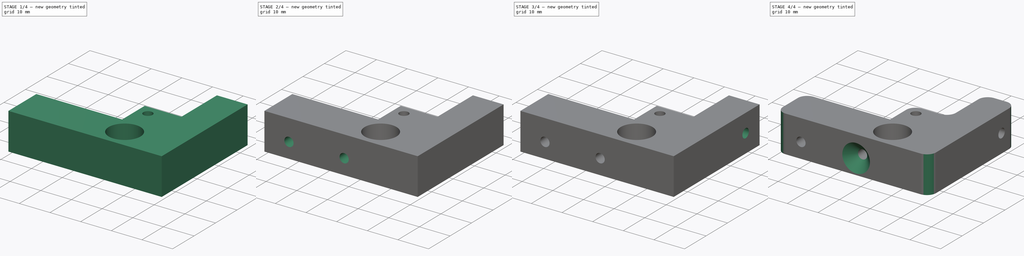
[diagram: build sequence overview — one tinted view per stage of 4, left to right]
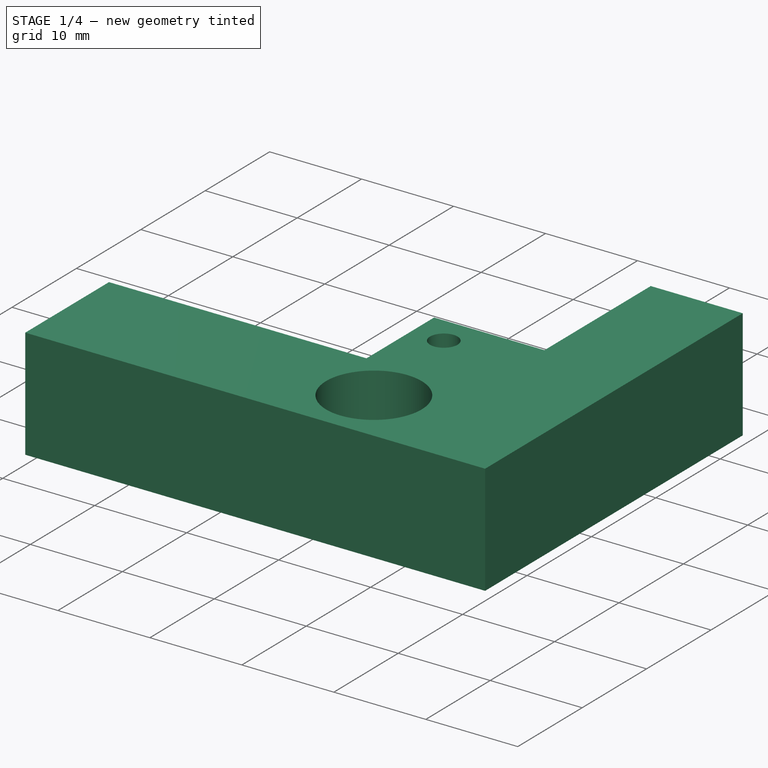
[diagram: stage 1 of 4 — iso view after this stage's code; geometry added in this stage tinted green]
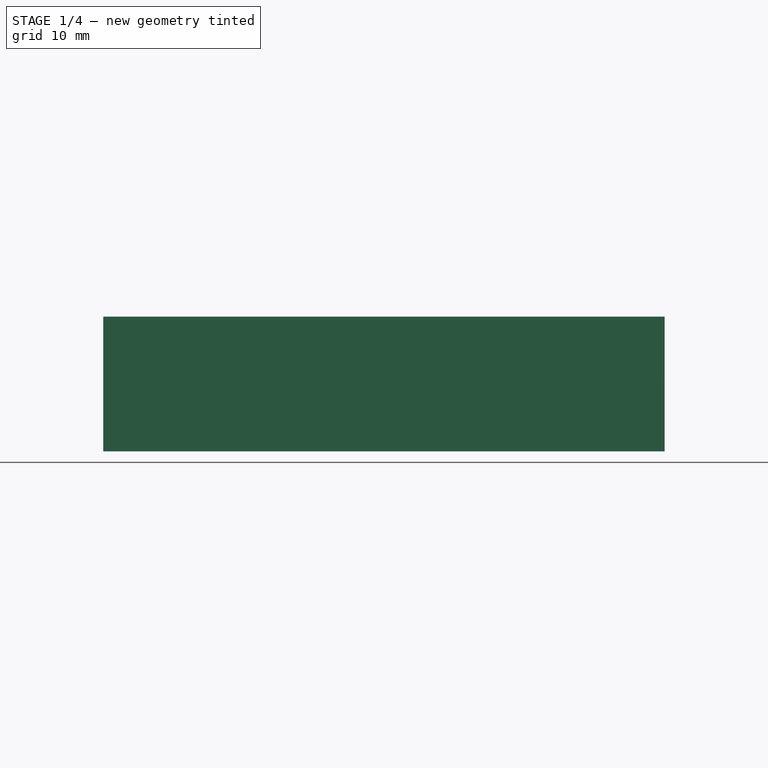
[diagram: stage 1 of 4 — front view after this stage's code; geometry added in this stage tinted green]
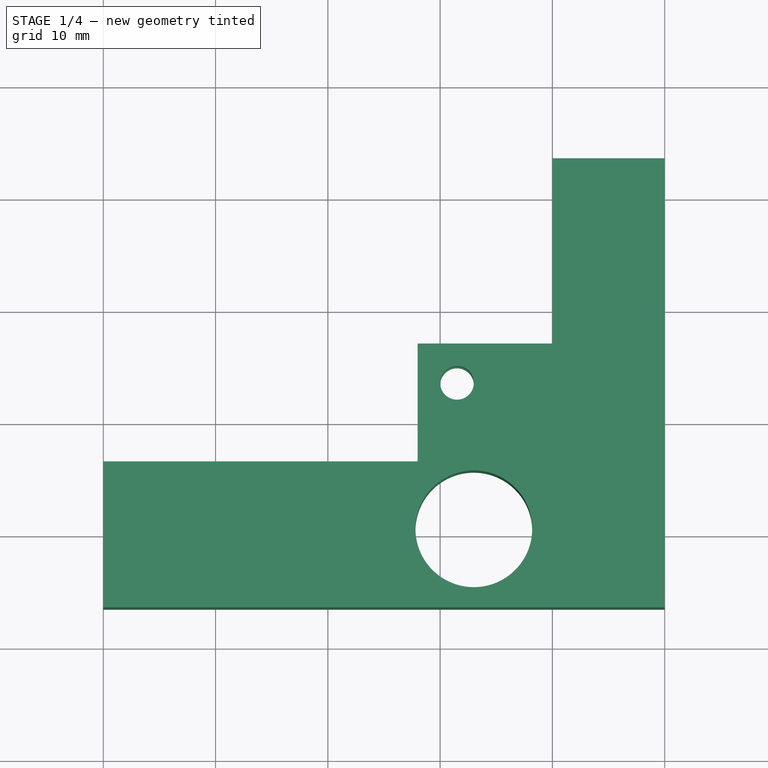
[diagram: stage 1 of 4 — top view after this stage's code; geometry added in this stage tinted green]
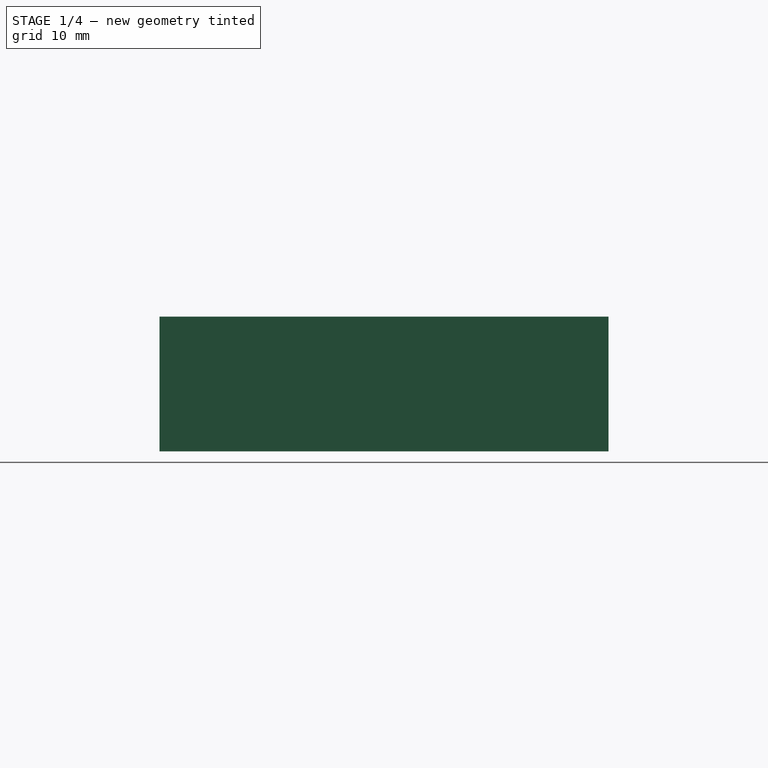
[diagram: stage 1 of 4 — right view after this stage's code; geometry added in this stage tinted green]
FCSTD DOCUMENT  (FreeCAD 0.18R14014 (Git))
Label: DriveIdler_623zz
License: All rights reserved
LicenseURL: http://en.wikipedia.org/wiki/All_rights_reserved
objects: Sketcher::SketchObject×8, PartDesign::Pocket×7, PartDesign::Fillet×2, PartDesign::Pad×1, PartDesign::Plane×1, PartDesign::Chamfer×1, PartDesign::Body×1, App::Part×1
note: 29 computed .brp shape members not serialized (recipe doc carries the construction recipe); baked Part::Feature solids carry a one-line shape summary decoded from their .brp

FEATURE [Sketcher::SketchObject] Sketch  label="DI_BaseSketch"
  MapMode = 5
  Support = -> [XY_Plane001]
  sketch-geometry (20):
    g0: LineSegment [constr] StartX=20 StartY=6.5 StartZ=0 EndX=20 EndY=0 EndZ=0
    g1: LineSegment [constr] StartX=20 StartY=0 StartZ=0 EndX=20 EndY=-6.5 EndZ=0
    g2: LineSegment StartX=20 StartY=-6.5 StartZ=0 EndX=0 EndY=-6.5 EndZ=0
    g3: LineSegment StartX=0 StartY=-6.5 StartZ=0 EndX=-20 EndY=-6.5 EndZ=0
    g4: LineSegment StartX=-20 StartY=6.5 StartZ=0 EndX=0 EndY=6.5 EndZ=0
    g5: Circle CenterX=13 CenterY=0.5 CenterZ=0 NormalX=0 NormalY=0 NormalZ=1 AngleXU=0 Radius=5.2
    g6: LineSegment StartX=0 StartY=6.5 StartZ=0 EndX=8 EndY=6.5 EndZ=0
    g7: LineSegment StartX=8 StartY=6.5 StartZ=0 EndX=8 EndY=17 EndZ=0
    g8: LineSegment StartX=8 StartY=17 StartZ=0 EndX=11.5 EndY=17 EndZ=0
    g9: LineSegment [constr] StartX=8 StartY=6.5 StartZ=0 EndX=20 EndY=6.5 EndZ=0
    g10: Circle CenterX=11.5 CenterY=13.5 CenterZ=0 NormalX=0 NormalY=0 NormalZ=1 AngleXU=0 Radius=1.5
    g11: LineSegment [constr] StartX=11.5 StartY=13.5 StartZ=0 EndX=11.5 EndY=17 EndZ=0
    g12: LineSegment StartX=-20 StartY=6.5 StartZ=0 EndX=-20 EndY=-6.5 EndZ=0
    g13: LineSegment [constr] StartX=13 StartY=0.5 StartZ=0 EndX=13 EndY=-6.5 EndZ=0
    g14: LineSegment [constr] StartX=13 StartY=-6.5 StartZ=0 EndX=20 EndY=-6.5 EndZ=0
    g15: LineSegment StartX=20 StartY=-6.5 StartZ=0 EndX=30 EndY=-6.5 EndZ=0
    g16: LineSegment StartX=30 StartY=-6.5 StartZ=0 EndX=30 EndY=33.5 EndZ=0
    g17: LineSegment StartX=30 StartY=33.5 StartZ=0 EndX=20 EndY=33.5 EndZ=0
    g18: LineSegment StartX=20 StartY=33.5 StartZ=0 EndX=20 EndY=17 EndZ=0
    g19: LineSegment StartX=11.5 StartY=17 StartZ=0 EndX=20 EndY=17 EndZ=0
  constraints (57):
    c: PointOnObject(g4,g-2)
    c: PointOnObject(g0,g-1)
    c: Vertical(g0)
    c: Coincident(g1,g0)
    c: Vertical(g1)
    c: Coincident(g2,g1)
    c: PointOnObject(g2,g-2)
    c: Horizontal(g2)
    c: Coincident(g3,g2)
    c: Horizontal(g3)
    c: Horizontal(g4)
    c: Distance(g0,g1) = 13
    c: Distance(g0,g4) = 40
    c: Radius(g5) = 5.2
    c: Coincident(g6,g4)
    c: Horizontal(g6)
    c: Coincident(g7,g6)
    c: Vertical(g7)
    c: Coincident(g8,g7)
    c: Horizontal(g8)
    c: Coincident(g9,g6)
    c: Coincident(g9,g0)
    c: Horizontal(g9)
    c: Radius(g10) = 1.5
    c: Distance(g8) = 3.5
    c: DistanceX(g-2,g10) = 11.5
    c: Coincident(g11,g10)
    c: Coincident(g11,g8)
    c: Vertical(g11)
    c: Equal(g8,g11)
    c: Distance(g10,g2) = 20
    c: Coincident(g12,g4)
    c: Equal(g2,g3)
    c: Equal(g3,g4)
    c: Coincident(g12,g3)
    c: Equal(g1,g0)
    c: Coincident(g13,g5)
    c: PointOnObject(g13,g2)
    c: Vertical(g13)
    c: Coincident(g14,g13)
    c: Coincident(g14,g1)
    c: Equal(g14,g13)
    c: Distance(g14) = 7
    c: Coincident(g15,g1)
    c: Horizontal(g15)
    c: Coincident(g16,g15)
    c: Vertical(g16)
    c: Coincident(g17,g16)
    c: Horizontal(g17)
    c: Coincident(g18,g17)
    c: Vertical(g18)
    c: Coincident(g19,g8)
    c: Coincident(g19,g18)
    c: Horizontal(g19)
    c: Distance(g17) = 10
    c: Equal(g17,g15)
    c: Distance(g16) = 40
FEATURE [PartDesign::Pad] Pad  label="DI_BasePad"
  Length = 12
  Length2 = 100
  Midplane = true
  Profile = -> Sketch
  Type = 0
FEATURE [Sketcher::SketchObject] Sketch001  label="DI_BearingCut1Sketch"
  ExternalGeometry = -> [Sketch]
  MapMode = 5
  Support = -> [XY_Plane001]
  sketch-geometry (3):
    g0: Circle CenterX=11.5 CenterY=13.5 CenterZ=0 NormalX=0 NormalY=0 NormalZ=1 AngleXU=0 Radius=3.3
    g1: LineSegment [constr] StartX=13 StartY=13.5 StartZ=0 EndX=14.8 EndY=13.5 EndZ=0
    g2: Circle CenterX=11.5 CenterY=13.5 CenterZ=0 NormalX=0 NormalY=0 NormalZ=1 AngleXU=0 Radius=6
  constraints (8):
    c: PointOnObject(g1,g0)
    c: Horizontal(g1)
    c: Distance(g1) = 1.8
    c: Coincident(g2,g0)
    c: Radius(g2) = 6
    c: PointOnObject(g1,g-3)
    c: Perpendicular(g-3,g1)
    c: Coincident(g0,g-3)
FEATURE [PartDesign::Pocket] Pocket  label="DI_BearingCut1Pocket"
  BaseFeature = -> Pad
  Length = 4
  Length2 = 2
  Profile = -> Sketch001
  Type = 4
FEATURE [Sketcher::SketchObject] Sketch002  label="DI_BearingCut2Sketch"
  ExternalGeometry = -> [Sketch001,Sketch]
  MapMode = 5
  Support = -> [XY_Plane001]
  sketch-geometry (2):
    g0: Circle CenterX=11.5 CenterY=13.5 CenterZ=0 NormalX=0 NormalY=0 NormalZ=1 AngleXU=0 Radius=1.5
    g1: Circle CenterX=11.5 CenterY=13.5 CenterZ=0 NormalX=0 NormalY=0 NormalZ=1 AngleXU=0 Radius=3.3
  constraints (4):
    c: Coincident(g1,g0)
    c: Coincident(g0,g-4)
    c: Equal(g0,g-4)
    c: Equal(g1,g-3)
FEATURE [PartDesign::Pocket] Pocket001  label="DI_BearingCut2Pocket"
  BaseFeature = -> Pocket
  Length = 3
  Length2 = 1
  Midplane = true
  Profile = -> Sketch002
  Type = 4
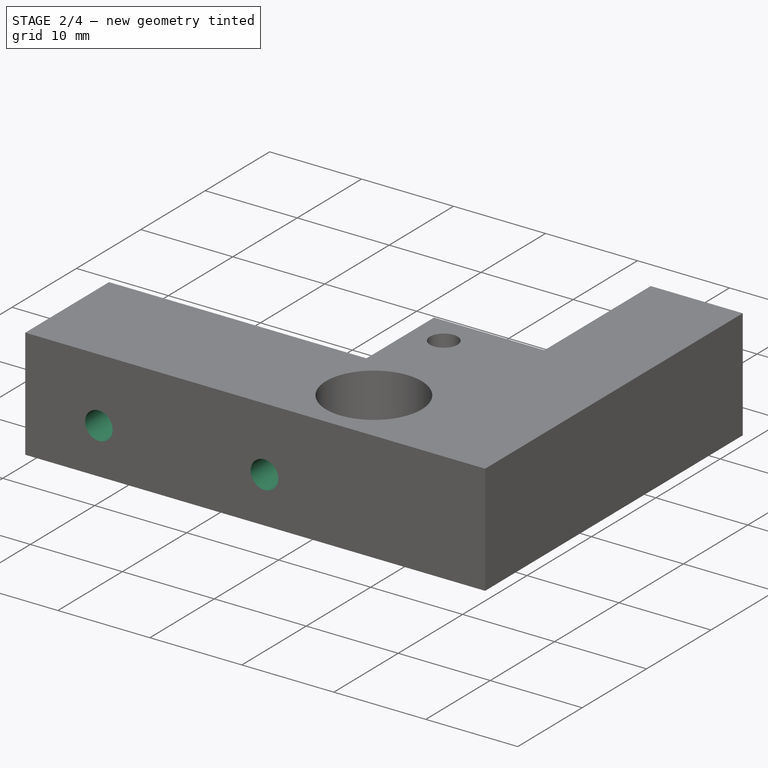
[diagram: stage 2 of 4 — iso view after this stage's code; geometry added in this stage tinted green]
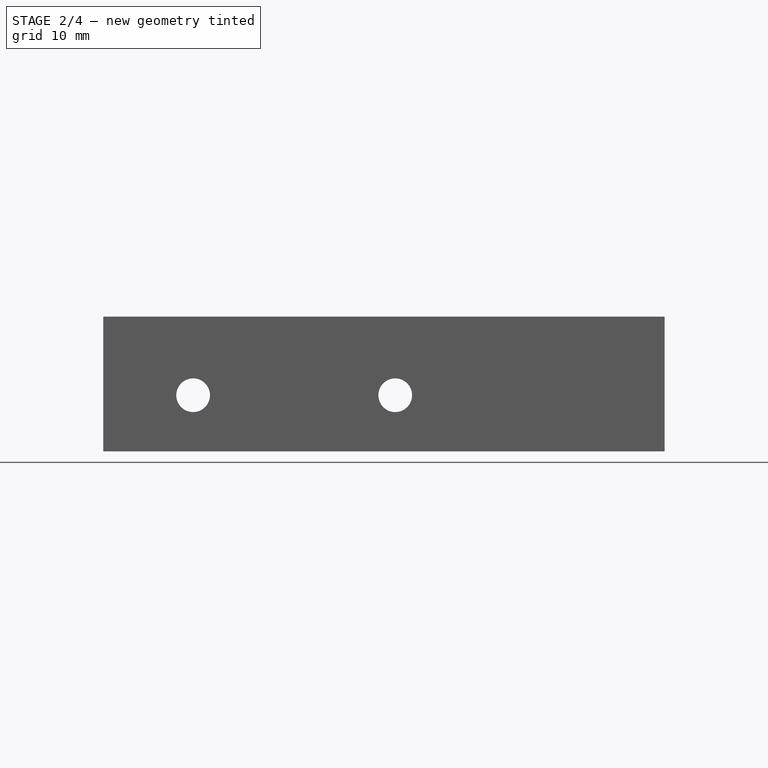
[diagram: stage 2 of 4 — front view after this stage's code; geometry added in this stage tinted green]
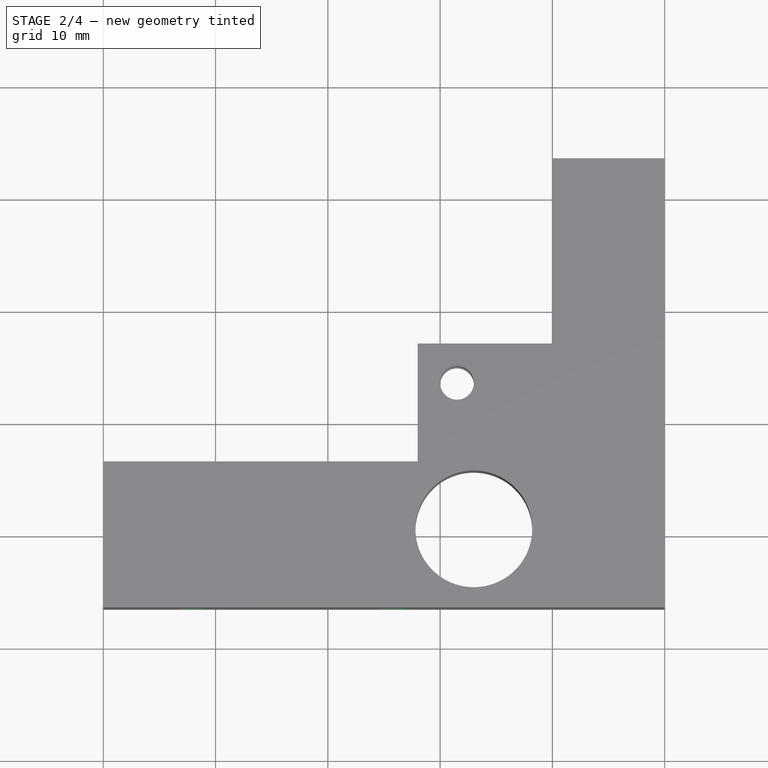
[diagram: stage 2 of 4 — top view after this stage's code; geometry added in this stage tinted green]
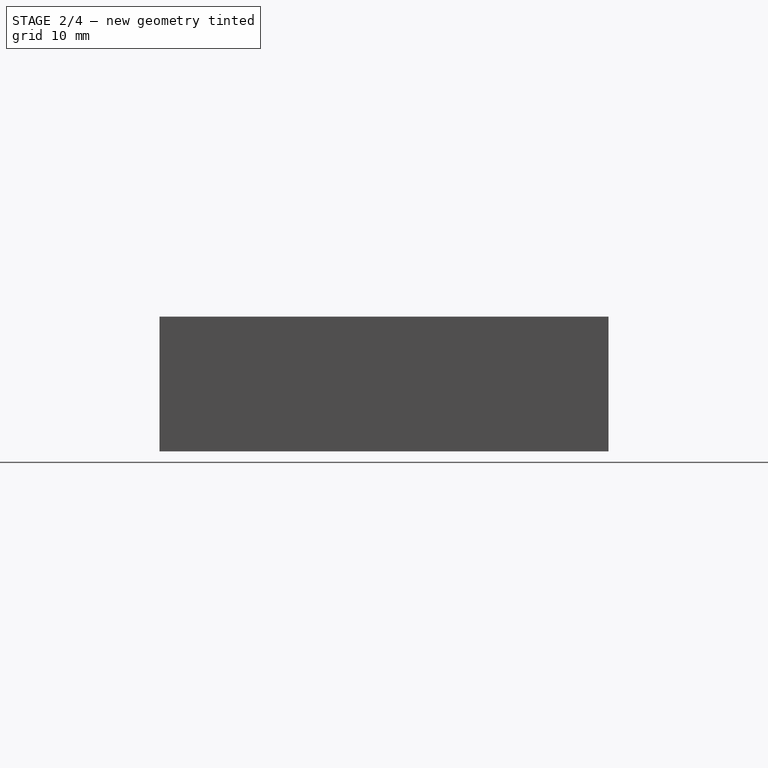
[diagram: stage 2 of 4 — right view after this stage's code; geometry added in this stage tinted green]
FEATURE [PartDesign::Plane] DatumPlane  label="DI_FrontPlane"
  AttachmentOffset = pos=(0,0,-6.5) rot=(0,0,1;0rad)
  MapMode = 5
  Placement = pos=(0,6.5,1e-12) rot=(1,0,0;1.5708rad)
  Support = -> [XZ_Plane001]
FEATURE [Sketcher::SketchObject] Sketch003  label="DI_SpringCutSketch"
  ExternalGeometry = -> [Pocket001]
  MapMode = 5
  Placement = pos=(0,6.5,1e-12) rot=(1,0,0;1.5708rad)
  Support = -> [DatumPlane]
  sketch-geometry (4):
    g0: LineSegment [constr] StartX=-20 StartY=6 StartZ=0 EndX=-12 EndY=6 EndZ=0
    g1: LineSegment [constr] StartX=-12 StartY=6 StartZ=0 EndX=-12 EndY=-1 EndZ=0
    g2: LineSegment [constr] StartX=-12 StartY=-1 StartZ=0 EndX=-12 EndY=-6 EndZ=0
    g3: Circle CenterX=-12 CenterY=-1 CenterZ=0 NormalX=0 NormalY=0 NormalZ=1 AngleXU=0 Radius=4.75
  constraints (11):
    c: Coincident(g1,g0)
    c: Vertical(g1)
    c: Coincident(g2,g1)
    c: Vertical(g2)
    c: Distance(g0) = 8
    c: Distance(g2) = 5
    c: Coincident(g3,g1)
    c: Radius(g3) = 4.75
    c: Coincident(g0,g-4)
    c: PointOnObject(g0,g-4)
    c: PointOnObject(g2,g-3)
FEATURE [PartDesign::Pocket] Pocket002  label="DI_SpringCutPocket"
  BaseFeature = -> Pocket001
  Length = 1.5
  Length2 = 100
  Profile = -> Sketch003
  Reversed = true
  Type = 0
FEATURE [Sketcher::SketchObject] Sketch005  label="DI_SpringScrewSketch"
  ExternalGeometry = -> [Sketch003]
  MapMode = 5
  Placement = pos=(0,6.5,1e-12) rot=(1,0,0;1.5708rad)
  Support = -> [DatumPlane]
  sketch-geometry (1):
    g0: Circle CenterX=-12 CenterY=-1 CenterZ=0 NormalX=0 NormalY=0 NormalZ=1 AngleXU=0 Radius=1.5
  constraints (2):
    c: Coincident(g0,g-3)
    c: Radius(g0) = 1.5
FEATURE [PartDesign::Pocket] Pocket004  label="DI_SpringScrewPocket"
  BaseFeature = -> Pocket002
  Length = 5
  Length2 = 100
  Profile = -> Sketch005
  Reversed = true
  Type = 1
FEATURE [Sketcher::SketchObject] Sketch004  label="DI_FilamenHoleSketch"
  ExternalGeometry = -> [Pocket004]
  MapMode = 5
  Placement = pos=(0,0,0) rot=(1,0,0;1.5708rad)
  Support = -> [XZ_Plane001]
  sketch-geometry (1):
    g0: Circle CenterX=6 CenterY=-1 CenterZ=0 NormalX=0 NormalY=0 NormalZ=1 AngleXU=0 Radius=1.5
  constraints (3):
    c: Distance(g0,g-3) = 5
    c: Distance(g0,g-2) = 6
    c: Radius(g0) = 1.5
FEATURE [PartDesign::Pocket] Pocket003  label="DI_FilamenHolePocket"
  BaseFeature = -> Pocket004
  Length = 5
  Length2 = 100
  Midplane = true
  Profile = -> Sketch004
  Type = 1
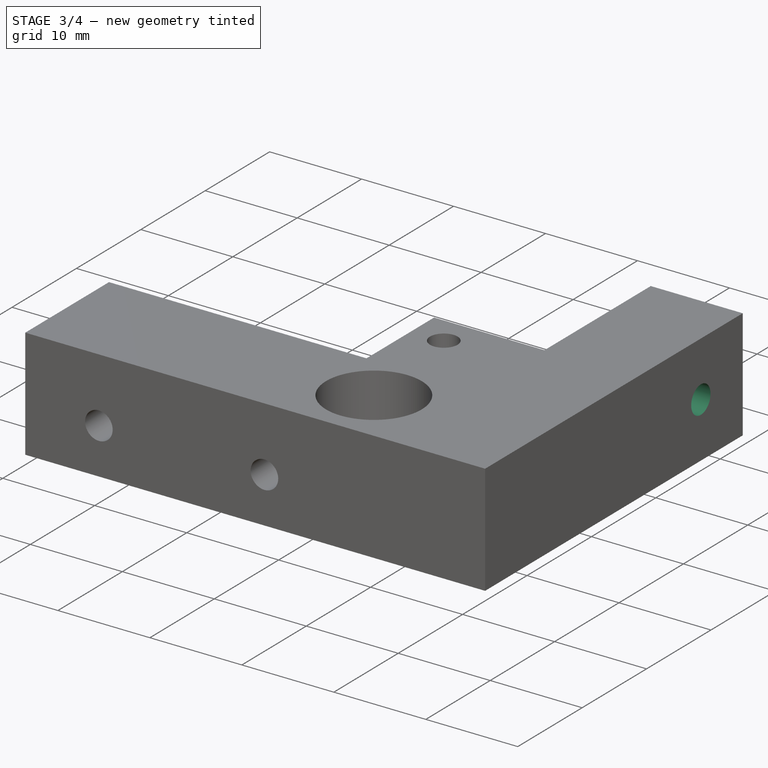
[diagram: stage 3 of 4 — iso view after this stage's code; geometry added in this stage tinted green]
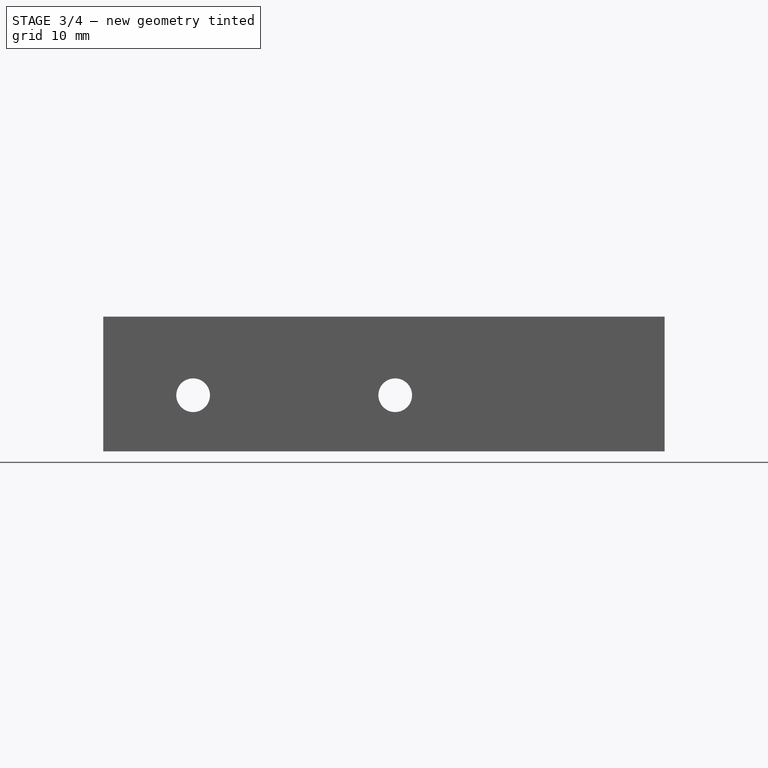
[diagram: stage 3 of 4 — front view after this stage's code; geometry added in this stage tinted green]
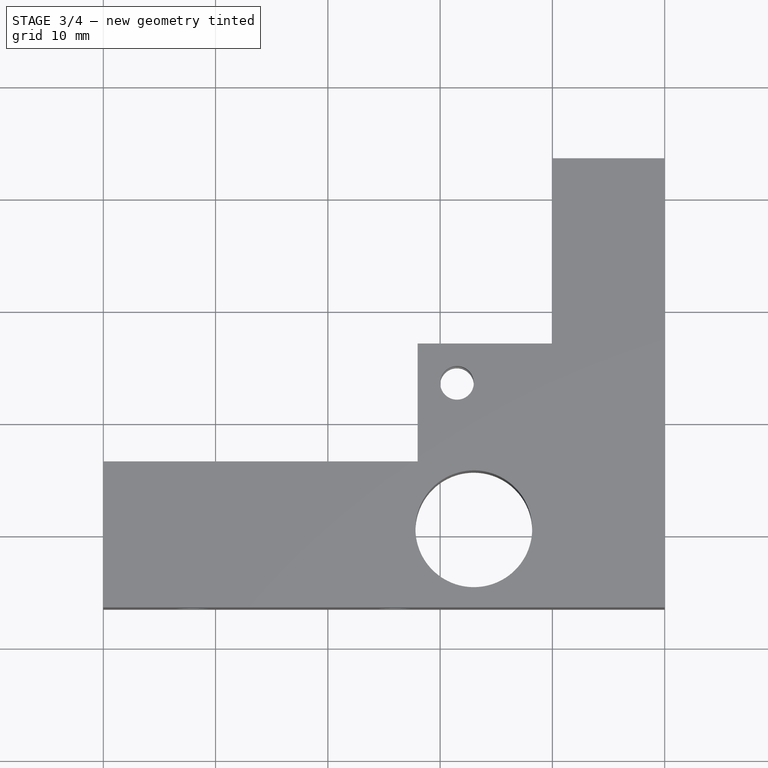
[diagram: stage 3 of 4 — top view after this stage's code; geometry added in this stage tinted green]
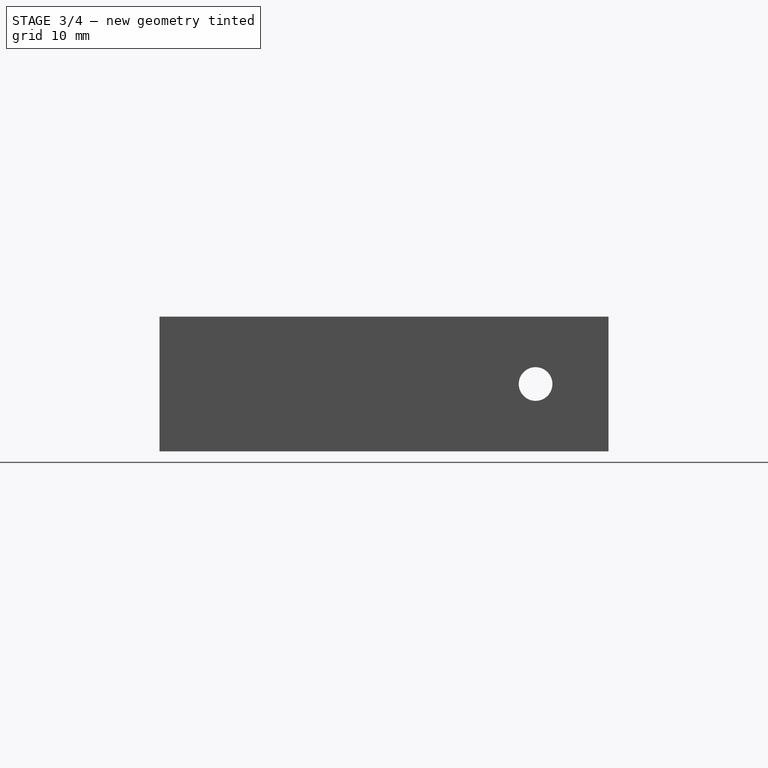
[diagram: stage 3 of 4 — right view after this stage's code; geometry added in this stage tinted green]
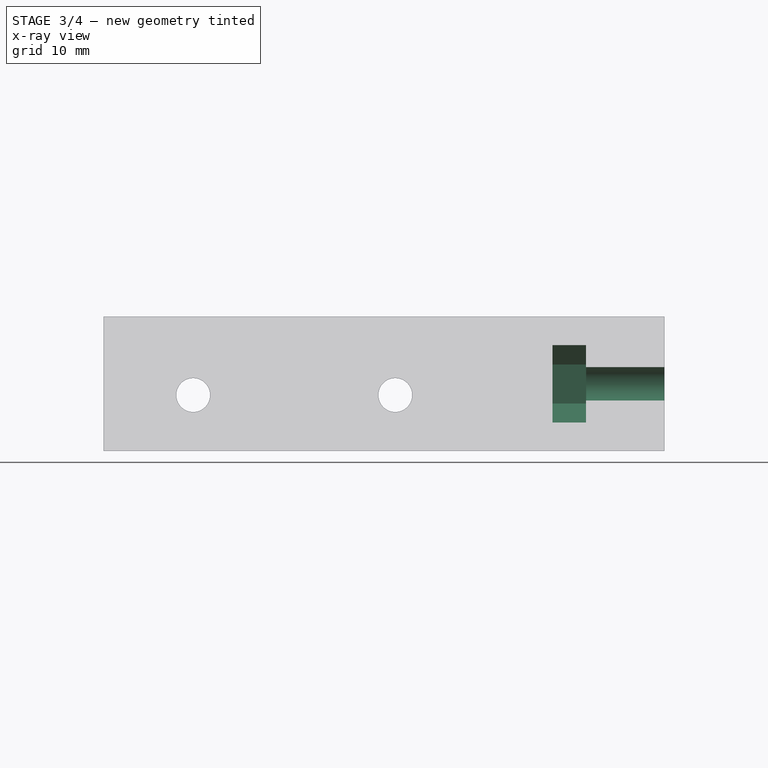
[diagram: stage 3 of 4 — x-ray composite at the front view; earlier geometry ghosted, this stage's added geometry solid]
FEATURE [Sketcher::SketchObject] Sketch006  label="DI_TuneScrewSketch"
  ExternalGeometry = -> [Pocket003]
  MapMode = 5
  Placement = pos=(0,0,0) rot=(0.57735,0.57735,0.57735;2.0944rad)
  Support = -> [YZ_Plane001]
  sketch-geometry (1):
    g0: Circle CenterX=27 CenterY=0 CenterZ=0 NormalX=0 NormalY=0 NormalZ=1 AngleXU=0 Radius=1.5
  constraints (3):
    c: PointOnObject(g0,g-1)
    c: Radius(g0) = 1.5
    c: Distance(g0,g-3) = 6.5
FEATURE [PartDesign::Pocket] Pocket005  label="DI_TuneScrewPocket"
  BaseFeature = -> Pocket003
  Length = 5
  Length2 = 100
  Profile = -> Sketch006
  Reversed = true
  Type = 1
FEATURE [Sketcher::SketchObject] Sketch007  label="DI_TuneScrewNutSketch"
  ExternalGeometry = -> [Sketch006]
  MapMode = 5
  Placement = pos=(0,0,0) rot=(0.57735,0.57735,0.57735;2.0944rad)
  Support = -> [YZ_Plane001]
  sketch-geometry (7):
    g0: LineSegment StartX=24 StartY=-1.73205 StartZ=0 EndX=27 EndY=-3.4641 EndZ=0
    g1: LineSegment StartX=27 StartY=-3.4641 StartZ=0 EndX=30 EndY=-1.73205 EndZ=0
    g2: LineSegment StartX=30 StartY=-1.73205 StartZ=0 EndX=30 EndY=1.73205 EndZ=0
    g3: LineSegment StartX=30 StartY=1.73205 StartZ=0 EndX=27 EndY=3.4641 EndZ=0
    g4: LineSegment StartX=27 StartY=3.4641 StartZ=0 EndX=24 EndY=1.73205 EndZ=0
    g5: LineSegment StartX=24 StartY=1.73205 StartZ=0 EndX=24 EndY=-1.73205 EndZ=0
    g6: Circle [constr] CenterX=27 CenterY=0 CenterZ=0 NormalX=0 NormalY=0 NormalZ=1 AngleXU=0 Radius=3.4641
  constraints (16):
    c: Coincident(g0,g1)
    c: Coincident(g1,g2)
    c: Coincident(g2,g3)
    c: Coincident(g3,g4)
    c: Coincident(g4,g5)
    c: Coincident(g5,g0)
    c: Equal(g0, g1-g5) x5
    c: PointOnObject(g0,g6)
    c: PointOnObject(g1,g6)
    c: PointOnObject(g2,g6)
    c: PointOnObject(g3,g6)
    c: PointOnObject(g4,g6)
    c: PointOnObject(g5,g6)
    c: Coincident(g6,g-3)
    c: Vertical(g2)
    c: Distance(g4,g2) = 6
FEATURE [PartDesign::Pocket] Pocket006  label="DI_TuneScrewNutPocket"
  BaseFeature = -> Pocket005
  Length = 23
  Length2 = 100
  Profile = -> Sketch007
  Reversed = true
  Type = 0
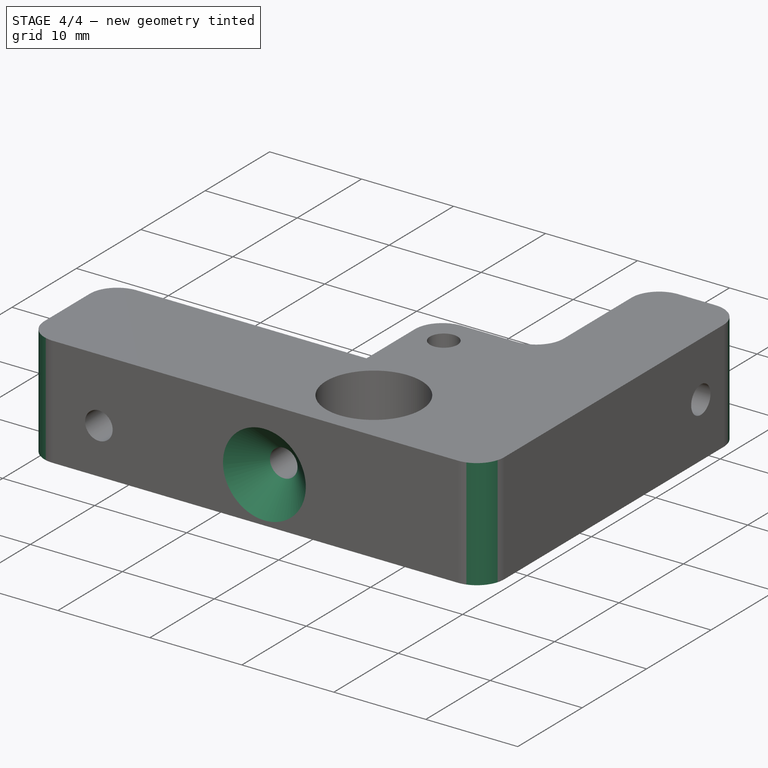
[diagram: stage 4 of 4 — iso view after this stage's code; geometry added in this stage tinted green]
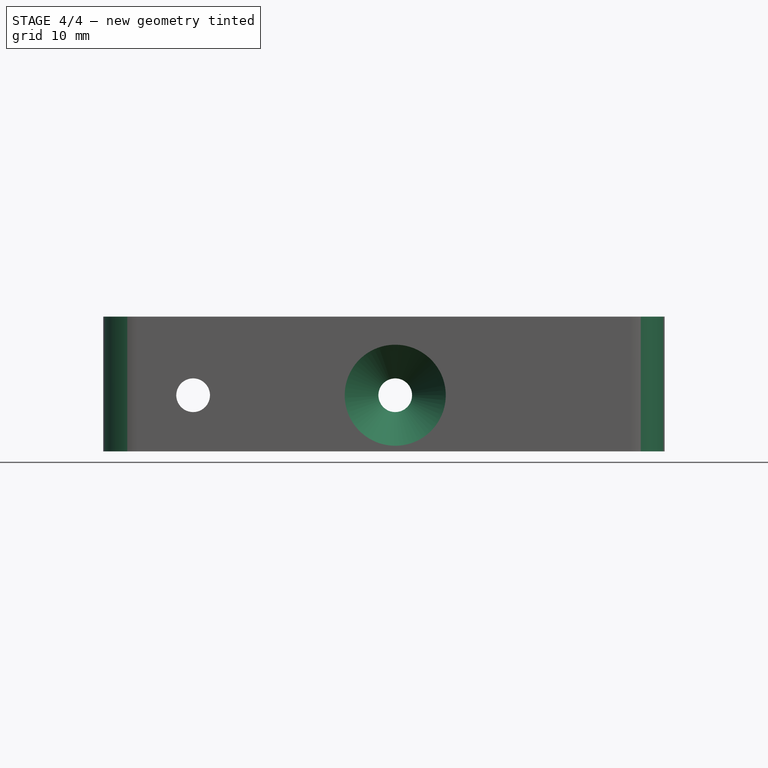
[diagram: stage 4 of 4 — front view after this stage's code; geometry added in this stage tinted green]
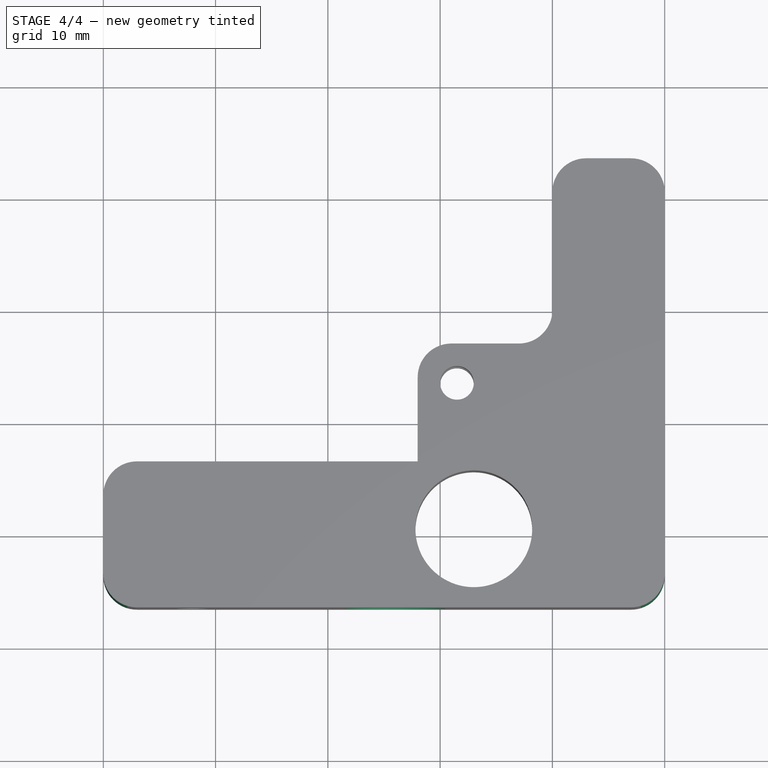
[diagram: stage 4 of 4 — top view after this stage's code; geometry added in this stage tinted green]
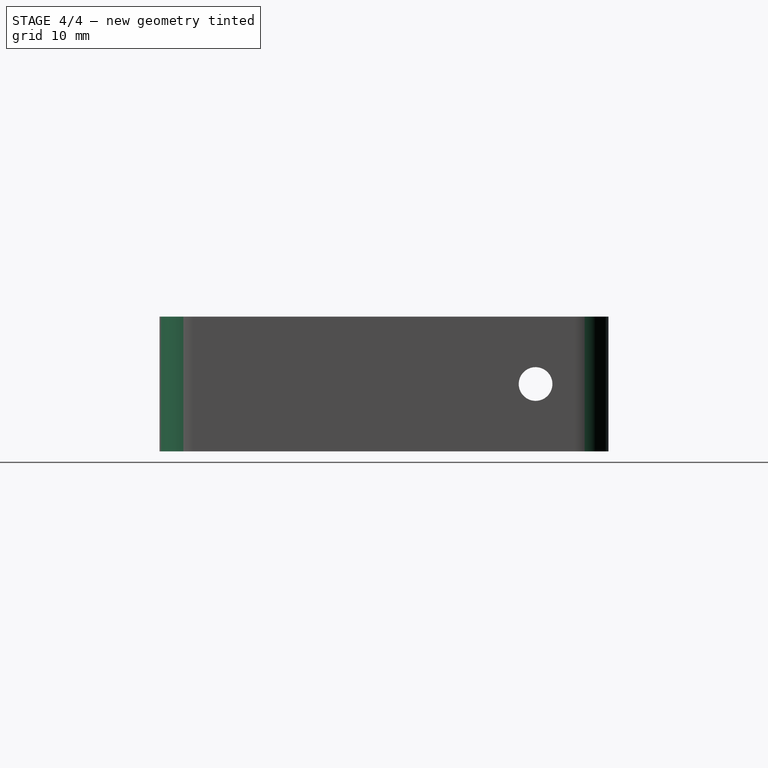
[diagram: stage 4 of 4 — right view after this stage's code; geometry added in this stage tinted green]
FEATURE [PartDesign::Fillet] Fillet  label="DI_CornersFillet"
  Base = -> Pocket006 [Edge6,Edge33,Edge37,Edge55,Edge39,Edge50,Edge47,Edge43]
  BaseFeature = -> Pocket006
  Radius = 3
FEATURE [PartDesign::Chamfer] Chamfer  label="DI_FilamentChamfer"
  Base = -> Fillet [Edge29]
  BaseFeature = -> Fillet
  Size = 3
FEATURE [PartDesign::Fillet] Fillet001  label="DI_ClampingFillet"
  Base = -> Chamfer [Edge28]
  BaseFeature = -> Chamfer
  Radius = 1.8
FEATURE [PartDesign::Body] Body  label="DriveIdlerBody"
  Group = -> [Sketch,Pad,Sketch001,Pocket,Sketch002,Pocket001,DatumPlane,Sketch003,Pocket002,Sketch005,Pocket004,Pocket003,Sketch004,Sketch006,Pocket005,Sketch007,Pocket006,Fillet,Chamfer,Fillet001]
  Origin = -> Origin001
  Tip = -> Fillet001
FEATURE [App::Part] Part  label="DriveIdlerPart"
  Group = -> [Body]
  License = CC BY 3.0
  LicenseURL = http://creativecommons.org/licenses/by/3.0/
  Origin = -> Origin
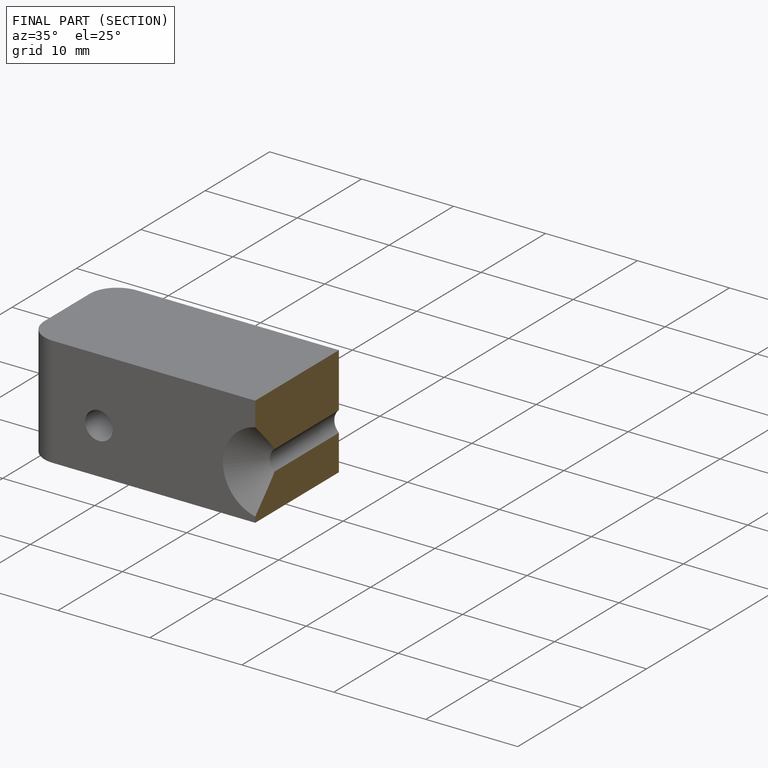
[diagram: finished part — half-section view (interior)]
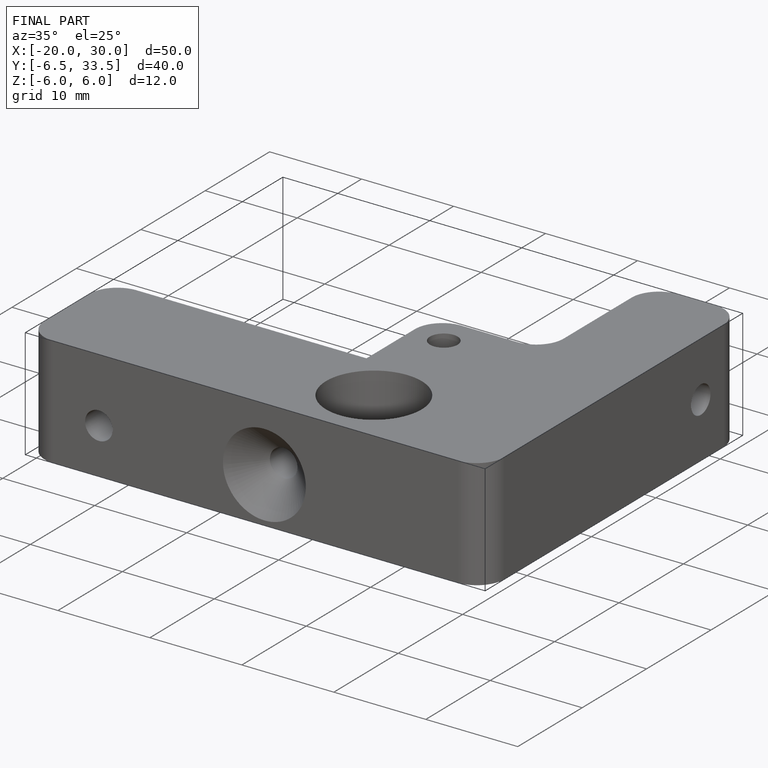
[diagram: finished part — iso view with bounding-box wireframe]
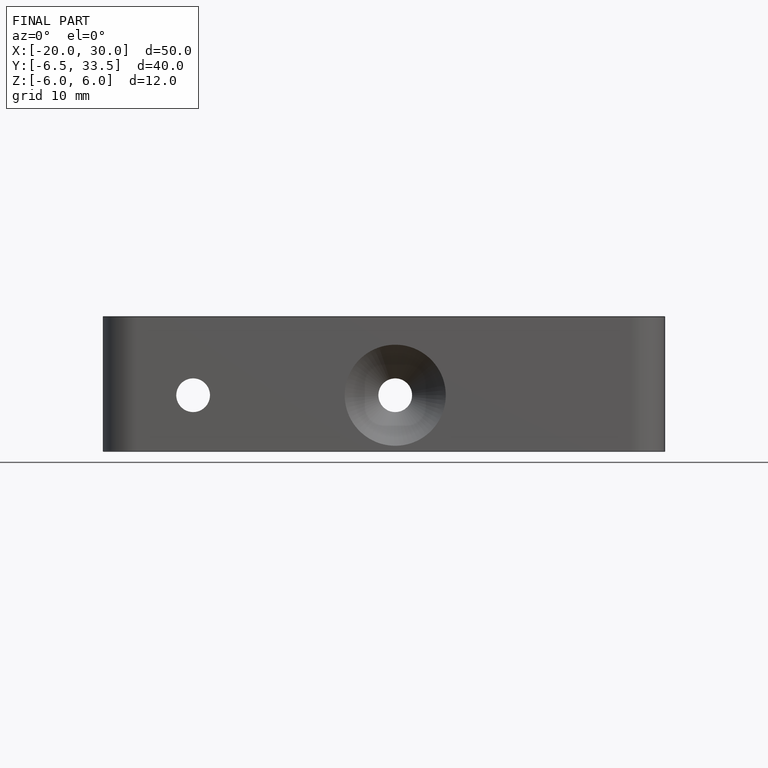
[diagram: finished part — front view with bounding-box wireframe]
